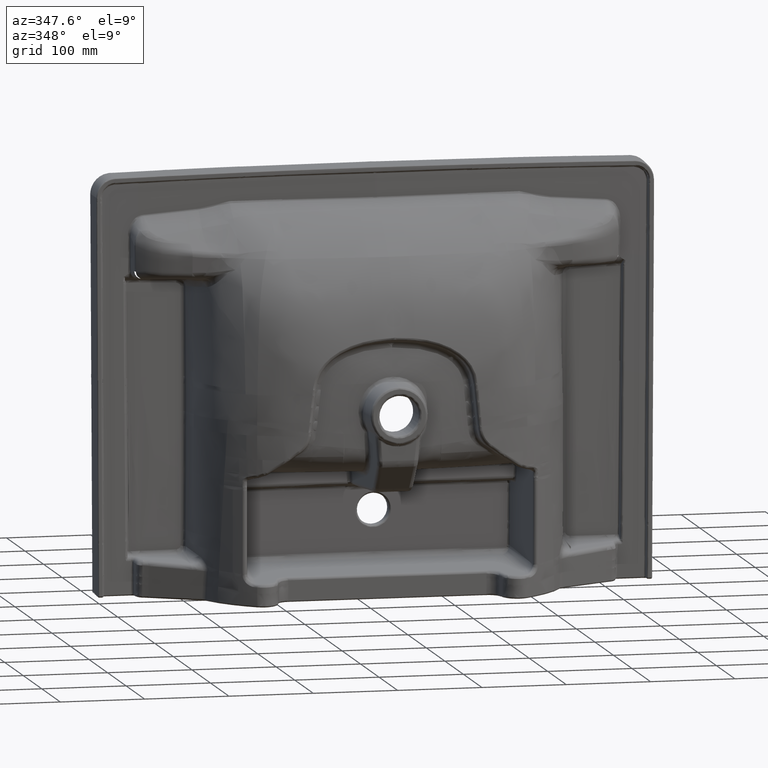
[diagram: clean part render]
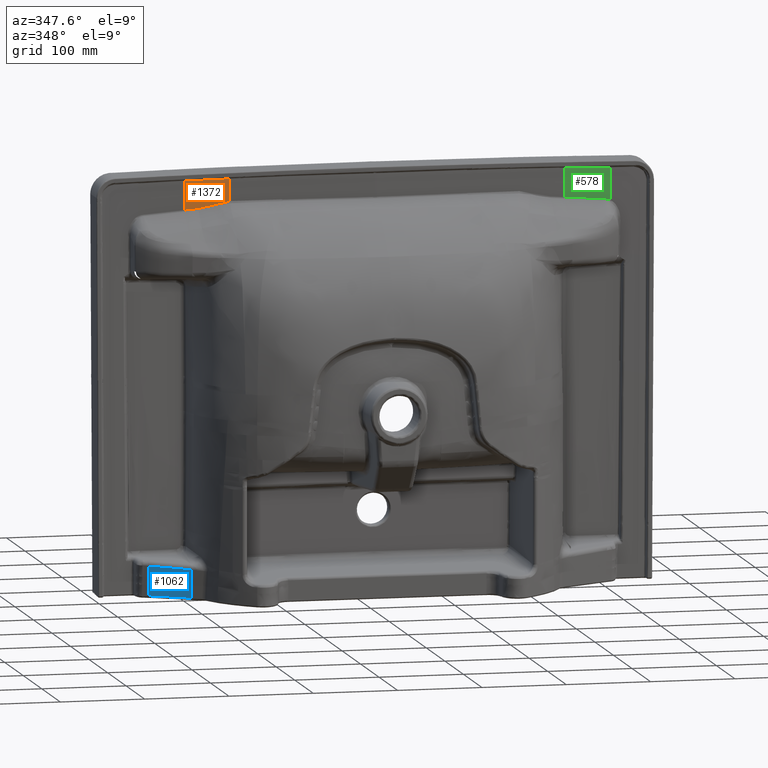
[diagram: same view with three faces highlighted in distinct colors, each labeled with its STEP entity id]
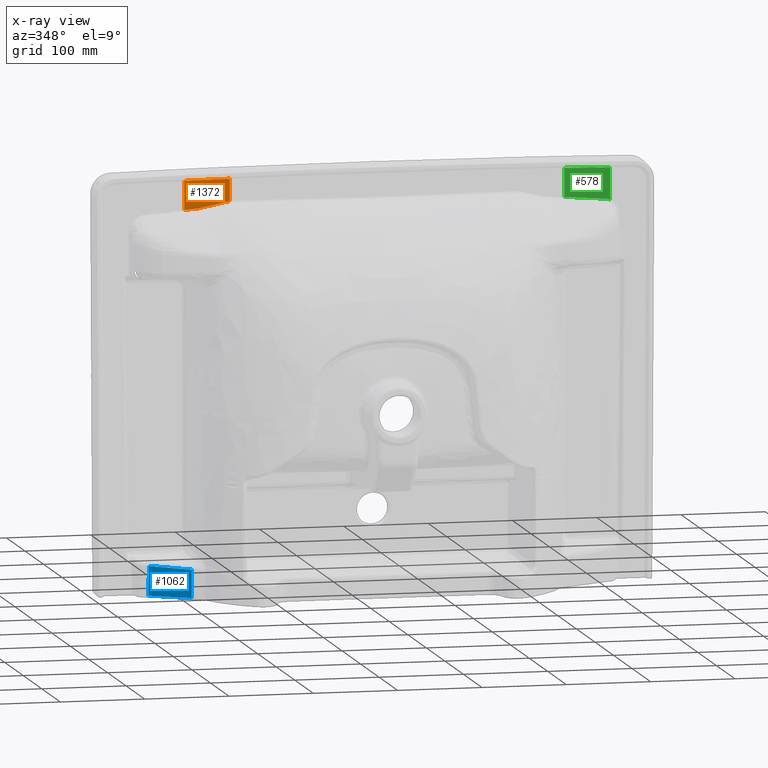
[diagram: x-ray of the same camera — body ghosted, the three highlighted faces saturated]
A machine part, auxiliary view with three faces highlighted in distinct colors.
The next image is the same camera in x-ray (body ghosted, the three faces saturated) — at least one of them is partly hidden behind the body in this view.
Their STEP definitions:

[orange] entity #1372 — the highlighted planar face has unit normal (-0.0175, -0.9998, -0).
#1372=ADVANCED_FACE('',(#2978),#23152,.T.);
#2978=FACE_OUTER_BOUND('',#4584,.T.);
#4584=EDGE_LOOP('',(#11153,#11154,#11155,#11156,#11157,#11158,#11159));
#11153=ORIENTED_EDGE('',*,*,#15265,.T.);
#11154=ORIENTED_EDGE('',*,*,#15355,.F.);
#11155=ORIENTED_EDGE('',*,*,#15478,.F.);
#11156=ORIENTED_EDGE('',*,*,#15356,.F.);
#11157=ORIENTED_EDGE('',*,*,#15353,.T.);
#11158=ORIENTED_EDGE('',*,*,#15357,.T.);
#11159=ORIENTED_EDGE('',*,*,#15262,.T.);
#15262=EDGE_CURVE('',#21646,#21591,#18589,.T.);
#15265=EDGE_CURVE('',#21591,#21647,#18592,.T.);
#15353=EDGE_CURVE('',#21700,#21645,#18663,.T.);
#15355=EDGE_CURVE('',#21701,#21647,#18665,.T.);
#15356=EDGE_CURVE('',#21700,#21702,#18666,.T.);
#15357=EDGE_CURVE('',#21645,#21646,#18667,.T.);
#15478=EDGE_CURVE('',#21702,#21701,#18762,.T.);
#18589=B_SPLINE_CURVE_WITH_KNOTS('',3,(#119696,#119697,#119698,#119699),
 .UNSPECIFIED.,.F.,.F.,(4,4),(-1.,0.),.UNSPECIFIED.);
#18592=B_SPLINE_CURVE_WITH_KNOTS('',1,(#119722,#119723),.UNSPECIFIED.,.F.,
 .F.,(2,2),(0.,34.0080573621129),.UNSPECIFIED.);
#18663=B_SPLINE_CURVE_WITH_KNOTS('',3,(#120167,#120168,#120169,#120170),
 .UNSPECIFIED.,.F.,.F.,(4,4),(-1.,0.),.UNSPECIFIED.);
#18665=B_SPLINE_CURVE_WITH_KNOTS('',3,(#120204,#120205,#120206,#120207),
 .UNSPECIFIED.,.F.,.F.,(4,4),(0.,1.),.UNSPECIFIED.);
#18666=B_SPLINE_CURVE_WITH_KNOTS('',3,(#120208,#120209,#120210,#120211),
 .UNSPECIFIED.,.F.,.F.,(4,4),(0.,1.),.UNSPECIFIED.);
#18667=B_SPLINE_CURVE_WITH_KNOTS('',3,(#120212,#120213,#120214,#120215),
 .UNSPECIFIED.,.F.,.F.,(4,4),(-1.,0.),.UNSPECIFIED.);
#18762=B_SPLINE_CURVE_WITH_KNOTS('',3,(#120803,#120804,#120805,#120806),
 .UNSPECIFIED.,.F.,.F.,(4,4),(-25.4102737099336,0.),.UNSPECIFIED.);
#21591=VERTEX_POINT('',#104708);
#21645=VERTEX_POINT('',#104762);
#21646=VERTEX_POINT('',#104763);
#21647=VERTEX_POINT('',#104764);
#21700=VERTEX_POINT('',#104817);
#21701=VERTEX_POINT('',#104818);
#21702=VERTEX_POINT('',#104819);
#23152=PLANE('',#23899);
#23899=AXIS2_PLACEMENT_3D('',#88894,#24171,$);
#24171=DIRECTION('',(-0.0174524064372835,-0.999847695156391,-2.22581664411219E-11));
#88894=CARTESIAN_POINT('',(-1464.21013516318,-48.3920188560812,193.890620214162));
#104708=CARTESIAN_POINT('',(-1409.89087852523,-49.340165008814,233.488040419863));
#104762=CARTESIAN_POINT('',(-1356.49526444814,-50.272188919048,234.369368911258));
#104763=CARTESIAN_POINT('',(-1403.86699014248,-49.4453123712745,233.600584215098));
#104764=CARTESIAN_POINT('',(-1409.89090698711,-49.3401652336578,199.479983058486));
#104817=CARTESIAN_POINT('',(-1356.49526444814,-50.2721889184666,208.254385631925));
#104818=CARTESIAN_POINT('',(-1393.59325700546,-49.6246410495055,200.77370809099));
#104819=CARTESIAN_POINT('',(-1369.25606696429,-50.0494482819504,205.533599572901));
#119696=CARTESIAN_POINT('',(-1403.86699014248,-49.4453123712745,233.600584215098));
#119697=CARTESIAN_POINT('',(-1405.87496480715,-49.4102630429997,233.563626555172));
#119698=CARTESIAN_POINT('',(-1407.88292696145,-49.3752139333501,233.52610229186));
#119699=CARTESIAN_POINT('',(-1409.89087852523,-49.340165008814,233.488040419863));
#119722=CARTESIAN_POINT('',(-1409.89087852523,-49.340165008814,233.488040419863));
#119723=CARTESIAN_POINT('',(-1409.89090698711,-49.3401652336578,199.479983058486));
#120167=CARTESIAN_POINT('',(-1356.49526444814,-50.2721889184666,208.254385631925));
#120168=CARTESIAN_POINT('',(-1356.49526444814,-50.2721889186604,216.959380058369));
#120169=CARTESIAN_POINT('',(-1356.49526444814,-50.2721889188542,225.664374484814));
#120170=CARTESIAN_POINT('',(-1356.49526444814,-50.272188919048,234.369368911258));
#120204=CARTESIAN_POINT('',(-1393.59325700546,-49.6246410495055,200.77370809099));
#120205=CARTESIAN_POINT('',(-1399.02584317863,-49.529815146044,200.343069866068));
#120206=CARTESIAN_POINT('',(-1404.458381401,-49.4349900795668,199.911828616578));
#120207=CARTESIAN_POINT('',(-1409.89090698711,-49.3401652336578,199.479983058486));
#120208=CARTESIAN_POINT('',(-1356.49526444814,-50.2721889184666,208.254385631925));
#120209=CARTESIAN_POINT('',(-1360.78095801388,-50.1973818590027,207.737144446922));
#120210=CARTESIAN_POINT('',(-1365.03753624713,-50.1230830095499,206.866512149656));
#120211=CARTESIAN_POINT('',(-1369.25606696429,-50.0494482819504,205.533599572901));
#120212=CARTESIAN_POINT('',(-1356.49526444814,-50.272188919048,234.369368911258));
#120213=CARTESIAN_POINT('',(-1372.2863506314,-49.9965544844271,234.146182656142));
#120214=CARTESIAN_POINT('',(-1388.07698967866,-49.7209278545935,233.891068090841));
#120215=CARTESIAN_POINT('',(-1403.86699014248,-49.4453123712745,233.600584215098));
#120803=CARTESIAN_POINT('',(-1369.25606696429,-50.0494482819504,205.533599572901));
#120804=CARTESIAN_POINT('',(-1377.18943203982,-49.9109708794023,203.031306666705));
#120805=CARTESIAN_POINT('',(-1385.29891490296,-49.7694193294561,201.429773368686));
#120806=CARTESIAN_POINT('',(-1393.59325700546,-49.6246410495055,200.77370809099));

[blue] entity #1062 — the highlighted planar face has unit normal (-0.4226, -0.9051, -0.0474).
#1062=ADVANCED_FACE('',(#2668),#23088,.T.);
#2668=FACE_OUTER_BOUND('',#4274,.T.);
#4274=EDGE_LOOP('',(#9690,#9691,#9692,#9693,#9694,#9695));
#9690=ORIENTED_EDGE('',*,*,#14589,.F.);
#9691=ORIENTED_EDGE('',*,*,#14668,.T.);
#9692=ORIENTED_EDGE('',*,*,#14750,.T.);
#9693=ORIENTED_EDGE('',*,*,#16007,.T.);
#9694=ORIENTED_EDGE('',*,*,#14669,.T.);
#9695=ORIENTED_EDGE('',*,*,#14670,.T.);
#14589=EDGE_CURVE('',#21197,#21245,#17994,.T.);
#14668=EDGE_CURVE('',#21197,#21293,#18067,.T.);
#14669=EDGE_CURVE('',#21295,#21296,#18068,.T.);
#14670=EDGE_CURVE('',#21296,#21245,#18069,.T.);
#14750=EDGE_CURVE('',#21293,#21294,#19648,.T.);
#16007=EDGE_CURVE('',#21294,#21295,#19223,.T.);
#17994=B_SPLINE_CURVE_WITH_KNOTS('',3,(#116533,#116534,#116535,#116536),
 .UNSPECIFIED.,.F.,.F.,(4,4),(0.,1.),.UNSPECIFIED.);
#18067=B_SPLINE_CURVE_WITH_KNOTS('',1,(#116880,#116881),.UNSPECIFIED.,.F.,
 .F.,(2,2),(0.,33.4880055309927),.UNSPECIFIED.);
#18068=B_SPLINE_CURVE_WITH_KNOTS('',3,(#116882,#116883,#116884,#116885),
 .UNSPECIFIED.,.F.,.F.,(4,4),(0.,1.),.UNSPECIFIED.);
#18069=B_SPLINE_CURVE_WITH_KNOTS('',3,(#116886,#116887,#116888,#116889),
 .UNSPECIFIED.,.F.,.F.,(4,4),(0.,1.),.UNSPECIFIED.);
#19223=B_SPLINE_CURVE_WITH_KNOTS('',3,(#124121,#124122,#124123,#124124,
#124125,#124126,#124127),.UNSPECIFIED.,.F.,.F.,(4,3,4),(0.192718755714112,
0.279921515218707,1.27992151521871),.UNSPECIFIED.);
#19648=(
BOUNDED_CURVE()
B_SPLINE_CURVE(3,(#117259,#117260,#117261,#117262),.UNSPECIFIED.,.F.,.F.)
B_SPLINE_CURVE_WITH_KNOTS((4,4),(0.,1.),.UNSPECIFIED.)
CURVE()
GEOMETRIC_REPRESENTATION_ITEM()
RATIONAL_B_SPLINE_CURVE((1.,1.,1.,1.))
REPRESENTATION_ITEM('')
);
#21197=VERTEX_POINT('',#104314);
#21245=VERTEX_POINT('',#104362);
#21293=VERTEX_POINT('',#104410);
#21294=VERTEX_POINT('',#104411);
#21295=VERTEX_POINT('',#104412);
#21296=VERTEX_POINT('',#104413);
#23088=PLANE('',#23835);
#23835=AXIS2_PLACEMENT_3D('',#79460,#24107,$);
#24107=DIRECTION('',(-0.422625822814714,-0.905062202719763,-0.0474323001575597));
#79460=CARTESIAN_POINT('',(-1456.12819244295,-66.2270753679194,-249.854169272955));
#104314=CARTESIAN_POINT('',(-1409.89087919209,-87.8235382980468,-249.747496117878));
#104362=CARTESIAN_POINT('',(-1456.12819244294,-66.2918044002092,-248.619065760179));
#104410=CARTESIAN_POINT('',(-1409.89087919209,-89.5761650901759,-216.305384734605));
#104411=CARTESIAN_POINT('',(-1456.12819244295,-68.1271585593257,-213.598422179678));
#104412=CARTESIAN_POINT('',(-1456.12819244295,-67.4496461312409,-226.5261294276));
#104413=CARTESIAN_POINT('',(-1456.12819244294,-66.9622098599555,-235.826967546561));
#116533=CARTESIAN_POINT('',(-1409.89087919209,-87.8235382980468,-249.747496117878));
#116534=CARTESIAN_POINT('',(-1425.30331694237,-80.6462936654341,-249.371352665312));
#116535=CARTESIAN_POINT('',(-1440.71575469266,-73.4690490328218,-248.995209212746));
#116536=CARTESIAN_POINT('',(-1456.12819244294,-66.2918044002092,-248.619065760179));
#116880=CARTESIAN_POINT('',(-1409.89087919209,-87.8235382980468,-249.747496117878));
#116881=CARTESIAN_POINT('',(-1409.89087919209,-89.5761650901759,-216.305384734605));
#116882=CARTESIAN_POINT('',(-1456.12819244295,-67.4496461312409,-226.5261294276));
#116883=CARTESIAN_POINT('',(-1456.12819244294,-67.2871673741455,-229.626408800591));
#116884=CARTESIAN_POINT('',(-1456.12819244294,-67.1246886170505,-232.726688173576));
#116885=CARTESIAN_POINT('',(-1456.12819244294,-66.9622098599555,-235.826967546561));
#116886=CARTESIAN_POINT('',(-1456.12819244294,-66.9622098599555,-235.826967546561));
#116887=CARTESIAN_POINT('',(-1456.12819244294,-66.7387413733734,-240.091000284434));
#116888=CARTESIAN_POINT('',(-1456.12819244294,-66.5152728867913,-244.355033022306));
#116889=CARTESIAN_POINT('',(-1456.12819244294,-66.2918044002092,-248.619065760179));
#117259=CARTESIAN_POINT('',(-1409.89087919209,-89.5761650901759,-216.305384734605));
#117260=CARTESIAN_POINT('',(-1425.30332061702,-82.4264945418657,-215.403063669059));
#117261=CARTESIAN_POINT('',(-1440.71575101806,-75.2768291075273,-214.500743246882));
#117262=CARTESIAN_POINT('',(-1456.12819244295,-68.1271585593257,-213.598422179678));
#124121=CARTESIAN_POINT('',(-1456.12819244295,-68.1271585593257,-213.598422179678));
#124122=CARTESIAN_POINT('',(-1456.12819244295,-68.058742709314,-214.903874365358));
#124123=CARTESIAN_POINT('',(-1456.12819244295,-67.9903268593023,-216.209326551039));
#124124=CARTESIAN_POINT('',(-1456.12819244295,-67.9219110092905,-217.514778736719));
#124125=CARTESIAN_POINT('',(-1456.12819244295,-67.7644893832742,-220.518562300341));
#124126=CARTESIAN_POINT('',(-1456.12819244294,-67.6070677572582,-223.522345863962));
#124127=CARTESIAN_POINT('',(-1456.12819244295,-67.4496461312409,-226.5261294276));

[green] entity #578 — the highlighted planar face has unit normal (0.0175, -0.9998, -0).
#578=ADVANCED_FACE('',(#2184),#23013,.T.);
#2184=FACE_OUTER_BOUND('',#3790,.T.);
#3790=EDGE_LOOP('',(#7443,#7444,#7445,#7446,#7447));
#7443=ORIENTED_EDGE('',*,*,#13576,.T.);
#7444=ORIENTED_EDGE('',*,*,#13577,.T.);
#7445=ORIENTED_EDGE('',*,*,#13578,.T.);
#7446=ORIENTED_EDGE('',*,*,#13484,.F.);
#7447=ORIENTED_EDGE('',*,*,#13579,.F.);
#13484=EDGE_CURVE('',#20604,#20606,#17015,.T.);
#13576=EDGE_CURVE('',#20605,#20663,#17096,.T.);
#13577=EDGE_CURVE('',#20663,#20664,#17097,.T.);
#13578=EDGE_CURVE('',#20664,#20606,#17098,.T.);
#13579=EDGE_CURVE('',#20605,#20604,#17099,.T.);
#17015=B_SPLINE_CURVE_WITH_KNOTS('',3,(#110826,#110827,#110828,#110829),
 .UNSPECIFIED.,.F.,.F.,(4,4),(0.,1.),.UNSPECIFIED.);
#17096=B_SPLINE_CURVE_WITH_KNOTS('',1,(#111295,#111296),.UNSPECIFIED.,.F.,
 .F.,(2,2),(0.,34.0080573621129),.UNSPECIFIED.);
#17097=B_SPLINE_CURVE_WITH_KNOTS('',3,(#111297,#111298,#111299,#111300),
 .UNSPECIFIED.,.F.,.F.,(4,4),(7.37826873619562E-07,1.),.UNSPECIFIED.);
#17098=B_SPLINE_CURVE_WITH_KNOTS('',3,(#111301,#111302,#111303,#111304),
 .UNSPECIFIED.,.F.,.F.,(4,4),(0.,0.999604893674682),.UNSPECIFIED.);
#17099=B_SPLINE_CURVE_WITH_KNOTS('',3,(#111305,#111306,#111307,#111308),
 .UNSPECIFIED.,.F.,.F.,(4,4),(-0.999999993117175,0.),.UNSPECIFIED.);
#20604=VERTEX_POINT('',#103721);
#20605=VERTEX_POINT('',#103722);
#20606=VERTEX_POINT('',#103723);
#20663=VERTEX_POINT('',#103780);
#20664=VERTEX_POINT('',#103781);
#23013=PLANE('',#23760);
#23760=AXIS2_PLACEMENT_3D('',#49275,#24032,$);
#24032=DIRECTION('',(0.0174524064372836,-0.999847695156391,-2.22583264485053E-11));
#49275=CARTESIAN_POINT('',(-904.956395166391,-48.3920188560175,193.890620214162));
#103721=CARTESIAN_POINT('',(-904.956395166213,-48.3920189551447,232.348619990595));
#103722=CARTESIAN_POINT('',(-959.27565180799,-49.340165008814,233.488040419863));
#103723=CARTESIAN_POINT('',(-904.958582864304,-48.3920478769113,194.142537215803));
#103780=CARTESIAN_POINT('',(-959.275623346113,-49.3401652336578,199.479983058486));
#103781=CARTESIAN_POINT('',(-910.655716018972,-48.4915008715844,195.610075191839));
#110826=CARTESIAN_POINT('',(-904.956395166213,-48.3920189551447,232.348619990595));
#110827=CARTESIAN_POINT('',(-904.957124239415,-48.392028593625,219.616044502423));
#110828=CARTESIAN_POINT('',(-904.957853251438,-48.3920382312965,206.884537433021));
#110829=CARTESIAN_POINT('',(-904.958582864304,-48.3920478769113,194.142537215803));
#111295=CARTESIAN_POINT('',(-959.27565180799,-49.340165008814,233.488040419863));
#111296=CARTESIAN_POINT('',(-959.275623346113,-49.3401652336578,199.479983058486));
#111297=CARTESIAN_POINT('',(-959.275623346113,-49.3401652336578,199.479983058486));
#111298=CARTESIAN_POINT('',(-943.068987524199,-49.0572771121603,198.190013765926));
#111299=CARTESIAN_POINT('',(-926.862351771586,-48.7743889918723,196.900044478882));
#111300=CARTESIAN_POINT('',(-910.655716018972,-48.4915008715844,195.610075191839));
#111301=CARTESIAN_POINT('',(-910.655716018972,-48.4915008715844,195.610075191839));
#111302=CARTESIAN_POINT('',(-908.671468941664,-48.4568626560031,195.454758002066));
#111303=CARTESIAN_POINT('',(-906.773011306484,-48.423721900477,194.965729818963));
#111304=CARTESIAN_POINT('',(-904.958582864304,-48.3920478769113,194.142537215803));
#111305=CARTESIAN_POINT('',(-959.27565180799,-49.340165008814,233.488040419863));
#111306=CARTESIAN_POINT('',(-943.11998468132,-49.058166819266,233.181316952528));
#111307=CARTESIAN_POINT('',(-925.013568458707,-48.7421181811048,232.801510198526));
#111308=CARTESIAN_POINT('',(-904.956395166213,-48.3920189551447,232.348619990595));